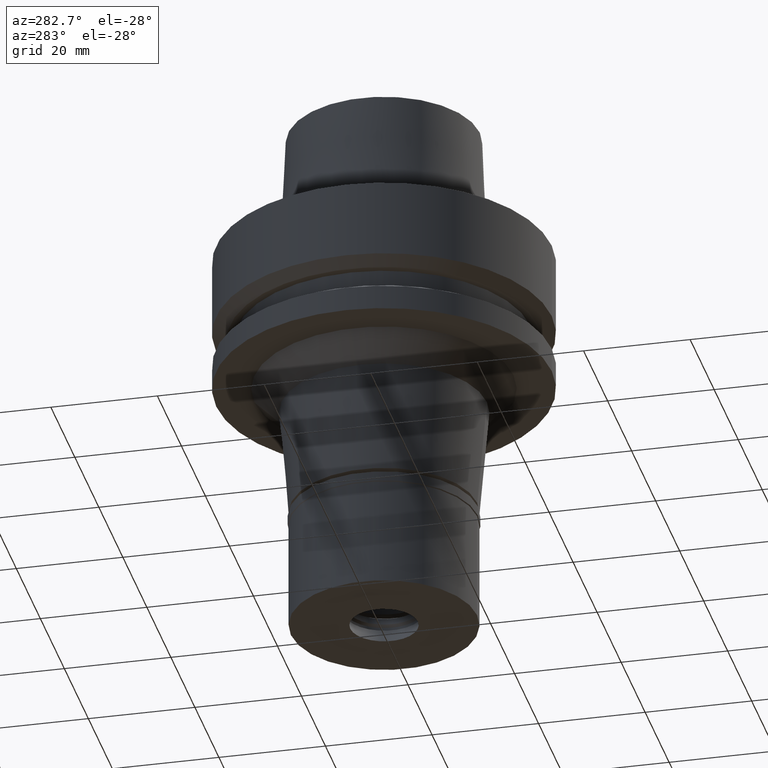
[diagram: clean part render]
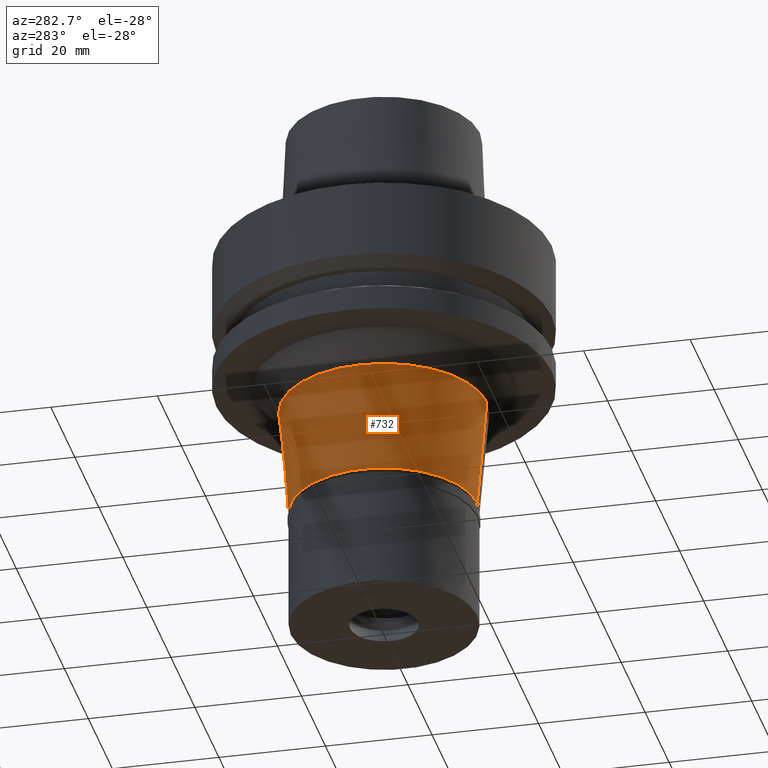
[diagram: same view with one face highlighted and labeled with its STEP entity id]
A machine part, auxiliary view. The second image highlights one B-rep face of the part: STEP entity #732.
In plain terms, the highlighted conical surface has half-angle 5 deg.
Its self-contained STEP definition (entity closure, byte-faithful):
#134 = EDGE_LOOP ( 'NONE', ( #2094, #688, #167, #2420 ) ) ;
#142 = VECTOR ( 'NONE', #1833, 1000.000000000000114 ) ;
#167 = ORIENTED_EDGE ( 'NONE', *, *, #607, .T. ) ;
#170 = LINE ( 'NONE', #338, #142 ) ;
#338 = CARTESIAN_POINT ( 'NONE',  ( 0.0000000000000000000, -19.31101533499000311, -31.00000000000000000 ) ) ;
#355 = CARTESIAN_POINT ( 'NONE',  ( 0.0000000000000000000, -19.31101533499000311, -31.00000000000000000 ) ) ;
#435 = CIRCLE ( 'NONE', #2159, 17.50000000000000000 ) ;
#546 = CARTESIAN_POINT ( 'NONE',  ( 0.0000000000000000000, 17.50000000000000000, -51.70000000000000284 ) ) ;
#607 = EDGE_CURVE ( 'NONE', #2300, #1129, #621, .T. ) ;
#621 = CIRCLE ( 'NONE', #2071, 19.31101533499000311 ) ;
#670 = LINE ( 'NONE', #1588, #2752 ) ;
#688 = ORIENTED_EDGE ( 'NONE', *, *, #2415, .F. ) ;
#732 = ADVANCED_FACE ( 'NONE', ( #841 ), #1320, .T. ) ;
#841 = FACE_OUTER_BOUND ( 'NONE', #134, .T. ) ;
#853 = DIRECTION ( 'NONE',  ( 0.0000000000000000000, 1.000000000000000000, 0.0000000000000000000 ) ) ;
#873 = VERTEX_POINT ( 'NONE', #1610 ) ;
#954 = DIRECTION ( 'NONE',  ( 0.0000000000000000000, -0.08715574274776323460, -0.9961946980917363303 ) ) ;
#1020 = CARTESIAN_POINT ( 'NONE',  ( 0.0000000000000000000, 0.0000000000000000000, -31.00000000000000000 ) ) ;
#1129 = VERTEX_POINT ( 'NONE', #1648 ) ;
#1320 = CONICAL_SURFACE ( 'NONE', #1363, 18.40550766749000289, 0.08726646259969973729 ) ;
#1363 = AXIS2_PLACEMENT_3D ( 'NONE', #1513, #1941, #853 ) ;
#1482 = EDGE_CURVE ( 'NONE', #1129, #1699, #670, .T. ) ;
#1513 = CARTESIAN_POINT ( 'NONE',  ( 0.0000000000000000000, 0.0000000000000000000, -41.34999999999999432 ) ) ;
#1588 = CARTESIAN_POINT ( 'NONE',  ( 0.0000000000000000000, 19.31101533499000311, -31.00000000000000000 ) ) ;
#1610 = CARTESIAN_POINT ( 'NONE',  ( 0.0000000000000000000, -17.50000000000000000, -51.70000000000000284 ) ) ;
#1648 = CARTESIAN_POINT ( 'NONE',  ( 0.0000000000000000000, 19.31101533499000311, -31.00000000000000000 ) ) ;
#1699 = VERTEX_POINT ( 'NONE', #546 ) ;
#1747 = DIRECTION ( 'NONE',  ( 0.0000000000000000000, -1.000000000000000000, 0.0000000000000000000 ) ) ;
#1792 = DIRECTION ( 'NONE',  ( 0.0000000000000000000, 0.0000000000000000000, 1.000000000000000000 ) ) ;
#1808 = DIRECTION ( 'NONE',  ( 0.0000000000000000000, 1.000000000000000000, 0.0000000000000000000 ) ) ;
#1833 = DIRECTION ( 'NONE',  ( 0.0000000000000000000, 0.08715574274776323460, -0.9961946980917363303 ) ) ;
#1941 = DIRECTION ( 'NONE',  ( 0.0000000000000000000, 0.0000000000000000000, 1.000000000000000000 ) ) ;
#1959 = CARTESIAN_POINT ( 'NONE',  ( 0.0000000000000000000, 0.0000000000000000000, -51.70000000000000284 ) ) ;
#2071 = AXIS2_PLACEMENT_3D ( 'NONE', #1020, #2768, #1747 ) ;
#2089 = EDGE_CURVE ( 'NONE', #1699, #873, #435, .T. ) ;
#2094 = ORIENTED_EDGE ( 'NONE', *, *, #2089, .T. ) ;
#2159 = AXIS2_PLACEMENT_3D ( 'NONE', #1959, #1792, #1808 ) ;
#2300 = VERTEX_POINT ( 'NONE', #355 ) ;
#2415 = EDGE_CURVE ( 'NONE', #2300, #873, #170, .T. ) ;
#2420 = ORIENTED_EDGE ( 'NONE', *, *, #1482, .T. ) ;
#2752 = VECTOR ( 'NONE', #954, 1000.000000000000114 ) ;
#2768 = DIRECTION ( 'NONE',  ( 0.0000000000000000000, 0.0000000000000000000, -1.000000000000000000 ) ) ;